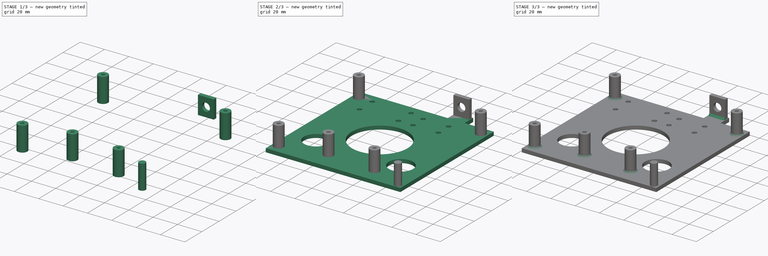
[diagram: build sequence overview — one tinted view per stage of 3, left to right]
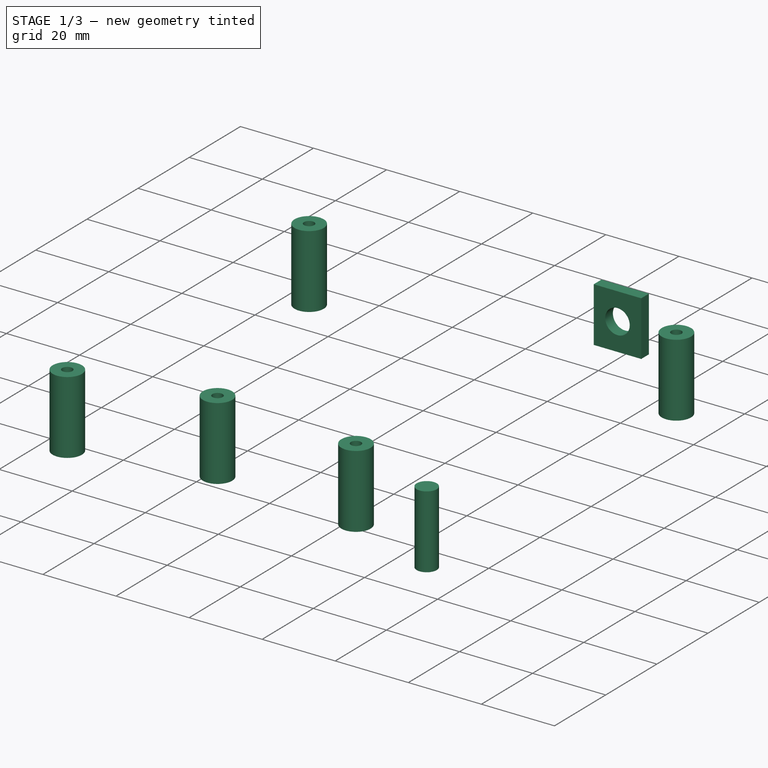
[diagram: stage 1 of 3 — iso view after this stage's code; geometry added in this stage tinted green]
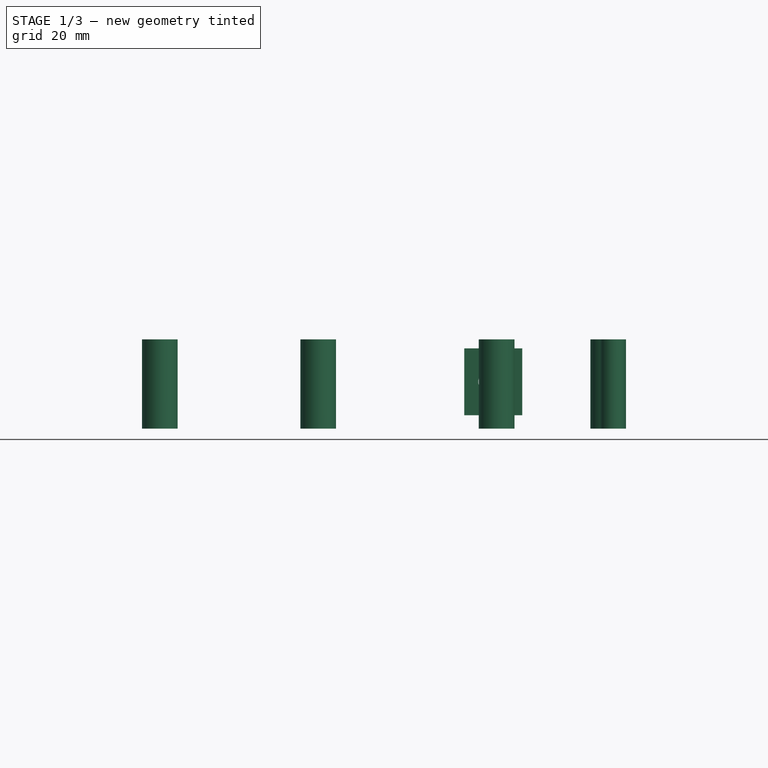
[diagram: stage 1 of 3 — front view after this stage's code; geometry added in this stage tinted green]
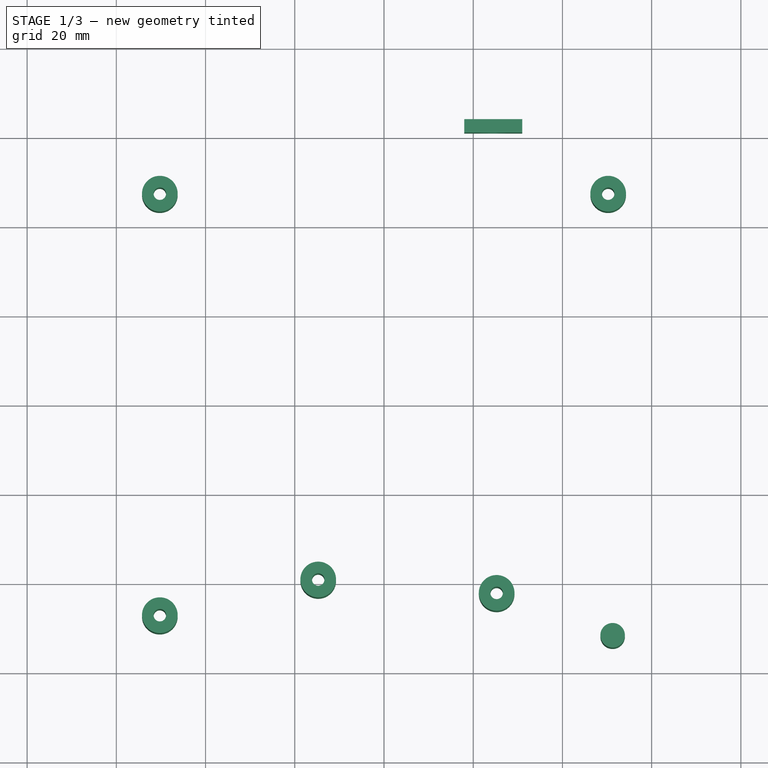
[diagram: stage 1 of 3 — top view after this stage's code; geometry added in this stage tinted green]
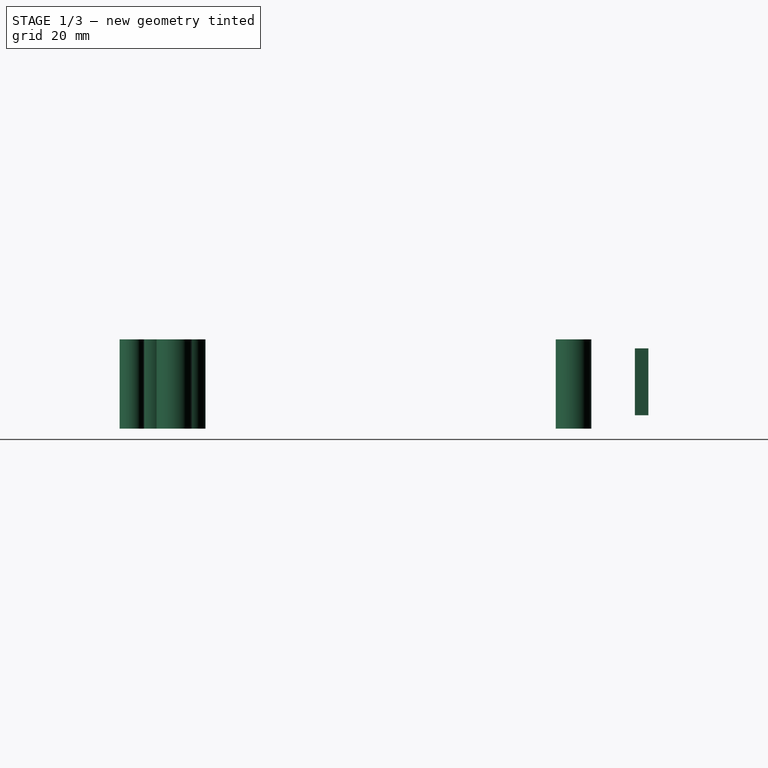
[diagram: stage 1 of 3 — right view after this stage's code; geometry added in this stage tinted green]
FCSTD DOCUMENT  (FreeCAD 0.16R6698 (Git))
Label: colibri-v2-frame
License: All rights reserved
LicenseURL: http://en.wikipedia.org/wiki/All_rights_reserved
objects: Sketcher::SketchObject×3, Part::Extrusion×3, Part::MultiFuse×1, Part::Chamfer×1
note: 8 computed .brp shape members not serialized (recipe doc carries the construction recipe); baked Part::Feature solids carry a one-line shape summary decoded from their .brp

FEATURE [Sketcher::SketchObject] Sketch001
  sketch-geometry (16):
    g0: LineSegment [constr] StartX=-50.25 StartY=47.25 StartZ=0 EndX=50.25 EndY=47.25 EndZ=0
    g1: LineSegment [constr] StartX=50.25 StartY=47.25 StartZ=0 EndX=50.25 EndY=-47.25 EndZ=0
    g2: LineSegment [constr] StartX=50.25 StartY=-47.25 StartZ=0 EndX=-50.25 EndY=-47.25 EndZ=0
    g3: LineSegment [constr] StartX=-50.25 StartY=-47.25 StartZ=0 EndX=-50.25 EndY=47.25 EndZ=0
    g4: GeomPoint [constr] X=50.25 Y=-47.25 Z=0
    g5: Circle CenterX=-50.25 CenterY=-47.25 CenterZ=0 NormalX=0 NormalY=0 NormalZ=1 Radius=1.4
    g6: Circle CenterX=50.25 CenterY=47.25 CenterZ=0 NormalX=0 NormalY=0 NormalZ=1 Radius=1.4
    g7: Circle CenterX=-50.25 CenterY=-47.25 CenterZ=0 NormalX=0 NormalY=0 NormalZ=1 Radius=4
    g8: Circle CenterX=50.25 CenterY=47.25 CenterZ=0 NormalX=0 NormalY=0 NormalZ=1 Radius=4
    g9: Circle CenterX=-50.25 CenterY=47.25 CenterZ=0 NormalX=0 NormalY=0 NormalZ=1 Radius=4
    g10: Circle CenterX=-50.25 CenterY=47.25 CenterZ=0 NormalX=0 NormalY=0 NormalZ=1 Radius=1.4
    g11: Circle CenterX=25.25 CenterY=-42.25 CenterZ=0 NormalX=0 NormalY=0 NormalZ=1 Radius=4
    g12: Circle CenterX=25.25 CenterY=-42.25 CenterZ=0 NormalX=0 NormalY=0 NormalZ=1 Radius=1.4
    g13: Circle CenterX=51.25 CenterY=-51.75 CenterZ=0 NormalX=0 NormalY=0 NormalZ=1 Radius=2.75
    g14: Circle CenterX=-14.75 CenterY=-39.25 CenterZ=0 NormalX=0 NormalY=0 NormalZ=1 Radius=4
    g15: Circle CenterX=-14.75 CenterY=-39.25 CenterZ=0 NormalX=0 NormalY=0 NormalZ=1 Radius=1.4
  constraints (39):
    c: Coincident(g0,g1)
    c: Coincident(g1,g2)
    c: Coincident(g3,g0)
    c: Horizontal(g0)
    c: Horizontal(g2)
    c: Vertical(g1)
    c: Vertical(g3)
    c: Symmetric(g0,g0,g-2)
    c: Symmetric(g0,g2,g-1)
    c: DistanceX(g0,g0) = 100.5
    c: PointOnObject(g4,g1)
    c: DistanceY(g4,g0) = 94.5
    c: Coincident(g5,g2)
    c: Coincident(g6,g0)
    c: Coincident(g7,g2)
    c: Coincident(g8,g0)
    c: Coincident(g4,g1)
    c: Coincident(g10,g9)
    c: Radius(g9) = 4
    c: Equal(g9,g8)
    c: Radius(g10) = 1.4
    c: Equal(g10,g6)
    c: Equal(g10,g5)
    c: Coincident(g3,g2)
    c: Coincident(g9,g0)
    c: Equal(g7,g9)
    c: Coincident(g12,g11)
    c: Equal(g12,g10)
    c: Equal(g11,g9)
    c: DistanceY(g2,g11) = 5
    c: DistanceX(g2,g11) = 75.5
    c: Radius(g13) = 2.75
    c: DistanceY(g13,g1) = 4.5
    c: DistanceX(g1,g13) = 1
    c: Coincident(g15,g14)
    c: Equal(g14,g9)
    c: Equal(g15,g10)
    c: DistanceX(g2,g14) = 35.5
    c: DistanceY(g2,g14) = 8
FEATURE [Part::Extrusion] Extrude001
  Base = -> Sketch001
  Dir = (0,0,20)
  Solid = true
FEATURE [Sketcher::SketchObject] Sketch002
  Placement = pos=(0,0,0) rot=(1,0,0;1.5708rad)
  sketch-geometry (6):
    g0: LineSegment StartX=30 StartY=0 StartZ=0 EndX=43 EndY=0 EndZ=0
    g1: LineSegment StartX=43 StartY=0 StartZ=0 EndX=43 EndY=15 EndZ=0
    g2: LineSegment StartX=43 StartY=15 StartZ=0 EndX=30 EndY=15 EndZ=0
    g3: LineSegment StartX=30 StartY=15 StartZ=0 EndX=30 EndY=0 EndZ=0
    g4: Circle CenterX=36.5 CenterY=7.5 CenterZ=0 NormalX=0 NormalY=0 NormalZ=1 Radius=3.35
    g5: LineSegment [constr] StartX=30 StartY=15 StartZ=0 EndX=43 EndY=0 EndZ=0
  constraints (17):
    c: Coincident(g0,g1)
    c: Coincident(g1,g2)
    c: Coincident(g2,g3)
    c: Coincident(g3,g0)
    c: Horizontal(g0)
    c: Horizontal(g2)
    c: Vertical(g1)
    c: Vertical(g3)
    c: PointOnObject(g0,g-1)
    c: DistanceX(g2,g2) = 13
    c: DistanceY(g1,g1) = 15
    c: Radius(g4) = 3.35
    c: Coincident(g5,g2)
    c: Coincident(g5,g0)
    c: PointOnObject(g4,g5)
    c: Symmetric(g2,g0,g4)
    c: DistanceX(g-1,g0) = 30
FEATURE [Part::Extrusion] Extrude002
  Base = -> Sketch002
  Dir = (0,3,0)
  Placement = pos=(-12,61,3) rot=(0,0,1;0rad)
  Solid = true
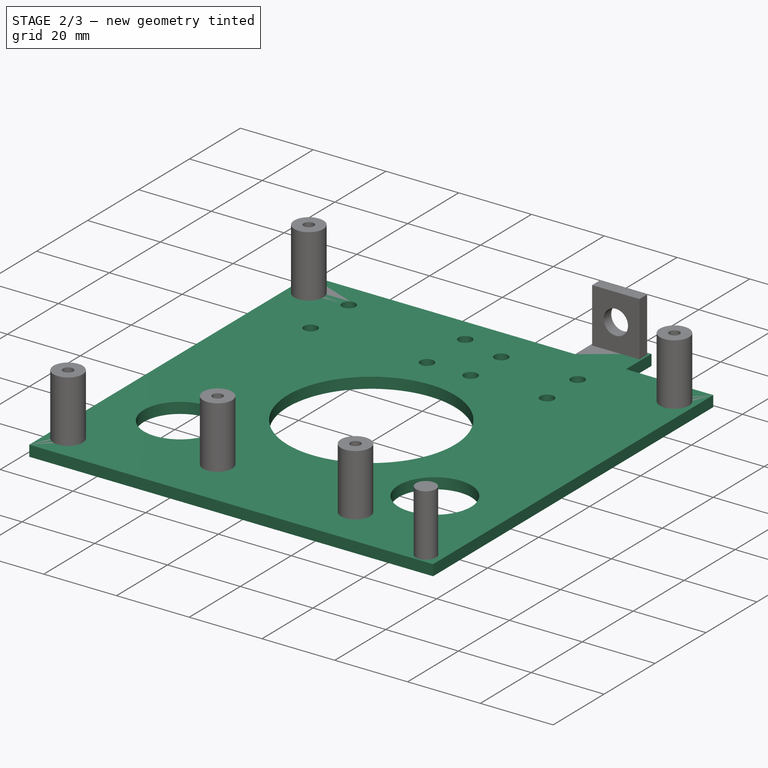
[diagram: stage 2 of 3 — iso view after this stage's code; geometry added in this stage tinted green]
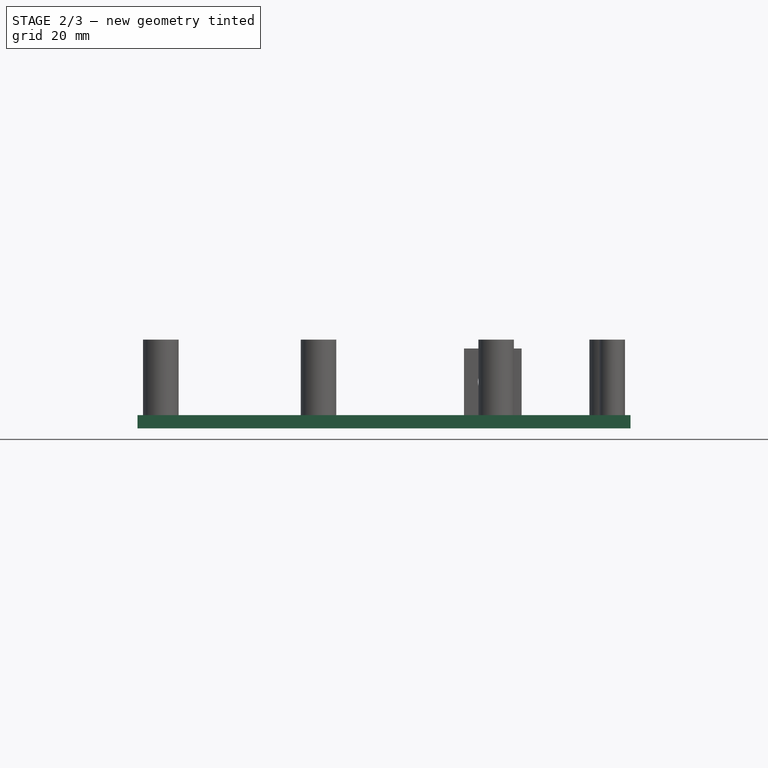
[diagram: stage 2 of 3 — front view after this stage's code; geometry added in this stage tinted green]
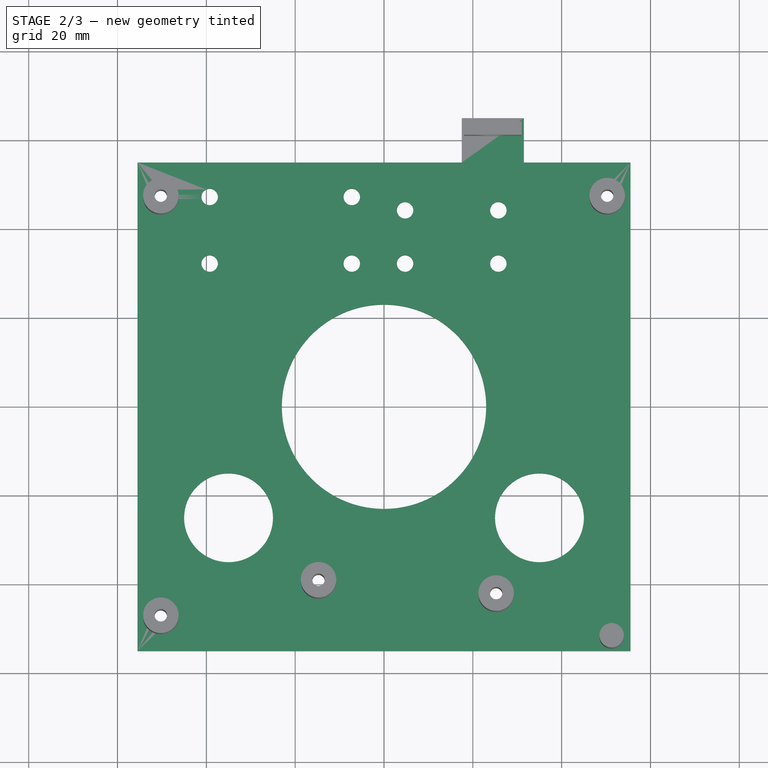
[diagram: stage 2 of 3 — top view after this stage's code; geometry added in this stage tinted green]
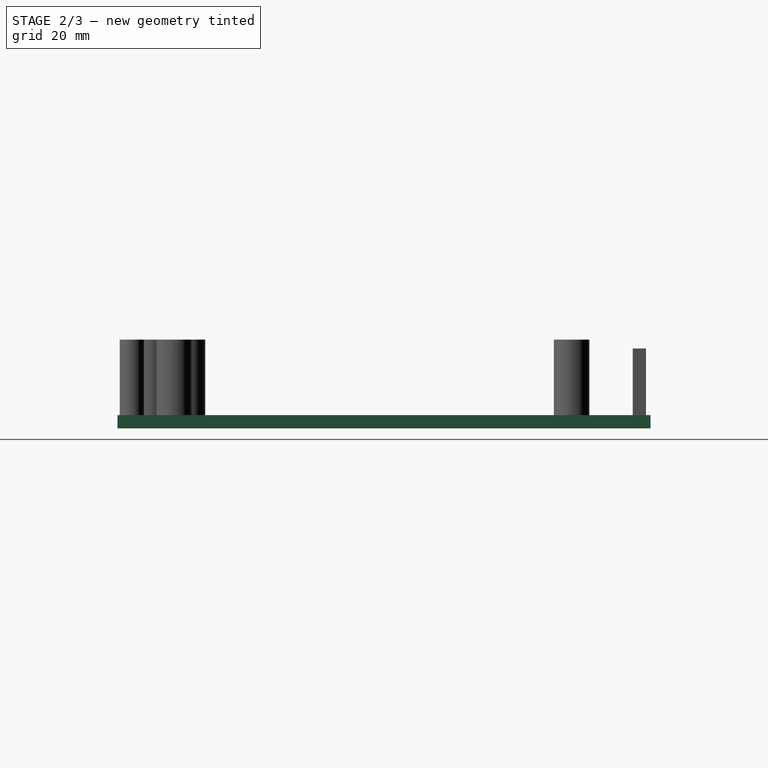
[diagram: stage 2 of 3 — right view after this stage's code; geometry added in this stage tinted green]
FEATURE [Sketcher::SketchObject] Sketch
  sketch-geometry (40):
    g0: LineSegment StartX=55.5 StartY=55 StartZ=0 EndX=55.5 EndY=-55 EndZ=0
    g1: LineSegment StartX=55.5 StartY=-55 StartZ=0 EndX=-55.5 EndY=-55 EndZ=0
    g2: LineSegment StartX=-55.5 StartY=-55 StartZ=0 EndX=-55.5 EndY=55 EndZ=0
    g3: LineSegment [constr] StartX=50.25 StartY=47.25 StartZ=0 EndX=50.25 EndY=-47.25 EndZ=0
    g4: LineSegment [constr] StartX=50.25 StartY=-47.25 StartZ=0 EndX=-50.25 EndY=-47.25 EndZ=0
    g5: LineSegment [constr] StartX=-50.25 StartY=-47.25 StartZ=0 EndX=-50.25 EndY=47.25 EndZ=0
    g6: Circle CenterX=-50.25 CenterY=-47.25 CenterZ=0 NormalX=0 NormalY=0 NormalZ=1 Radius=1.9
    g7: LineSegment [constr] StartX=-35 StartY=25 StartZ=0 EndX=35 EndY=25 EndZ=0
    g8: LineSegment [constr] StartX=35 StartY=25 StartZ=0 EndX=35 EndY=-25 EndZ=0
    g9: LineSegment [constr] StartX=35 StartY=-25 StartZ=0 EndX=-35 EndY=-25 EndZ=0
    g10: LineSegment [constr] StartX=-35 StartY=-25 StartZ=0 EndX=-35 EndY=25 EndZ=0
    g11: Circle CenterX=35 CenterY=-25 CenterZ=0 NormalX=0 NormalY=0 NormalZ=1 Radius=10
    g12: Circle CenterX=-35 CenterY=-25 CenterZ=0 NormalX=0 NormalY=0 NormalZ=1 Radius=10
    g13: Circle CenterX=0 CenterY=0 CenterZ=0 NormalX=0 NormalY=0 NormalZ=1 Radius=23
    g14: LineSegment [constr] StartX=-39.25 StartY=47.25 StartZ=0 EndX=-7.25 EndY=47.25 EndZ=0
    g15: LineSegment [constr] StartX=-7.25 StartY=47.25 StartZ=0 EndX=-7.25 EndY=32.25 EndZ=0
    g16: LineSegment [constr] StartX=-7.25 StartY=32.25 StartZ=0 EndX=-39.25 EndY=32.25 EndZ=0
    g17: LineSegment [constr] StartX=-39.25 StartY=32.25 StartZ=0 EndX=-39.25 EndY=47.25 EndZ=0
    g18: LineSegment [constr] StartX=4.75 StartY=44.25 StartZ=0 EndX=25.75 EndY=44.25 EndZ=0
    g19: LineSegment [constr] StartX=25.75 StartY=44.25 StartZ=0 EndX=25.75 EndY=32.25 EndZ=0
    g20: LineSegment [constr] StartX=25.75 StartY=32.25 StartZ=0 EndX=4.75 EndY=32.25 EndZ=0
    g21: LineSegment [constr] StartX=4.75 StartY=32.25 StartZ=0 EndX=4.75 EndY=44.25 EndZ=0
    g22: Circle CenterX=-39.25 CenterY=47.25 CenterZ=0 NormalX=0 NormalY=0 NormalZ=1 Radius=1.85
    g23: Circle CenterX=-7.25 CenterY=47.25 CenterZ=0 NormalX=0 NormalY=0 NormalZ=1 Radius=1.85
    g24: Circle CenterX=-39.25 CenterY=32.25 CenterZ=0 NormalX=0 NormalY=0 NormalZ=1 Radius=1.85
    g25: Circle CenterX=-7.25 CenterY=32.25 CenterZ=0 NormalX=0 NormalY=0 NormalZ=1 Radius=1.85
    g26: Circle CenterX=4.75 CenterY=44.25 CenterZ=0 NormalX=0 NormalY=0 NormalZ=1 Radius=1.85
    g27: Circle CenterX=25.75 CenterY=44.25 CenterZ=0 NormalX=0 NormalY=0 NormalZ=1 Radius=1.85
    g28: Circle CenterX=4.75 CenterY=32.25 CenterZ=0 NormalX=0 NormalY=0 NormalZ=1 Radius=1.85
    g29: Circle CenterX=25.75 CenterY=32.25 CenterZ=0 NormalX=0 NormalY=0 NormalZ=1 Radius=1.85
    g30: LineSegment [constr] StartX=-50.25 StartY=47.25 StartZ=0 EndX=50.25 EndY=47.25 EndZ=0
    g31: Circle CenterX=50.25 CenterY=47.25 CenterZ=0 NormalX=0 NormalY=0 NormalZ=1 Radius=1.9
    g32: Circle CenterX=-50.25 CenterY=47.25 CenterZ=0 NormalX=0 NormalY=0 NormalZ=1 Radius=1.9
    g33: Circle CenterX=25.25 CenterY=-42.25 CenterZ=0 NormalX=0 NormalY=0 NormalZ=1 Radius=1.9
    g34: LineSegment StartX=-55.5 StartY=55 StartZ=0 EndX=17.5 EndY=55 EndZ=0
    g35: LineSegment StartX=17.5 StartY=55 StartZ=0 EndX=17.5 EndY=65 EndZ=0
    g36: LineSegment StartX=17.5 StartY=65 StartZ=0 EndX=31.5 EndY=65 EndZ=0
    g37: LineSegment StartX=31.5 StartY=65 StartZ=0 EndX=31.5 EndY=55 EndZ=0
    g38: LineSegment StartX=31.5 StartY=55 StartZ=0 EndX=55.5 EndY=55 EndZ=0
    g39: Circle CenterX=-14.75 CenterY=-39.25 CenterZ=0 NormalX=0 NormalY=0 NormalZ=1 Radius=1.9
  constraints (106):
    c: Coincident(g0,g1)
    c: Coincident(g1,g2)
    c: Horizontal(g1)
    c: Vertical(g0)
    c: Vertical(g2)
    c: Symmetric(g2,g1,g-1)
    c: Symmetric(g1,g0,g-2)
    c: DistanceY(g2,g2) = 110
    c: DistanceX(g2,g0) = 111
    c: Coincident(g3,g4)
    c: Coincident(g4,g5)
    c: Vertical(g3)
    c: Vertical(g5)
    c: Symmetric(g5,g4,g-1)
    c: Coincident(g6,g4)
    c: Coincident(g7,g8)
    c: Coincident(g8,g9)
    c: Coincident(g9,g10)
    c: Coincident(g10,g7)
    c: Horizontal(g7)
    c: Horizontal(g9)
    c: Vertical(g8)
    c: Vertical(g10)
    c: Symmetric(g7,g9,g-1)
    c: Symmetric(g7,g7,g-2)
    c: DistanceY(g10,g10) = 50
    c: DistanceX(g7,g7) = 70
    c: Coincident(g11,g8)
    c: Coincident(g12,g9)
    c: Coincident(g13,g-1)
    c: Radius(g12) = 10
    c: Equal(g12,g11)
    c: Radius(g13) = 23
    c: Coincident(g14,g15)
    c: Coincident(g15,g16)
    c: Coincident(g16,g17)
    c: Coincident(g17,g14)
    c: Horizontal(g14)
    c: Horizontal(g16)
    c: Vertical(g15)
    c: Vertical(g17)
    c: Coincident(g18,g19)
    c: Coincident(g19,g20)
    c: Coincident(g20,g21)
    c: Coincident(g21,g18)
    c: Horizontal(g18)
    c: Horizontal(g20)
    c: Vertical(g19)
    c: Vertical(g21)
    c: DistanceY(g15,g15) = 15
    c: DistanceY(g21,g21) = 12
    c: DistanceX(g15,g20) = 12
    c: DistanceX(g16,g16) = 32
    c: DistanceX(g18,g18) = 21
    c: Coincident(g22,g14)
    c: Coincident(g23,g14)
    c: Coincident(g24,g16)
    c: Coincident(g25,g15)
    c: Equal(g22,g23)
    c: Equal(g22,g25)
    c: Equal(g22,g24)
    c: Coincident(g26,g18)
    c: Coincident(g27,g18)
    c: Coincident(g28,g20)
    c: Coincident(g29,g19)
    c: Radius(g28) = 1.85
    c: Equal(g28,g26)
    c: Equal(g28,g27)
    c: Equal(g28,g29)
    c: Coincident(g30,g3)
    c: Horizontal(g30)
    c: Symmetric(g4,g3,g-2)
    c: DistanceY(g3,g3) = 94.5
    c: Symmetric(g3,g3,g-1)
    c: Coincident(g30,g5)
    c: DistanceX(g4,g3) = 100.5
    c: Coincident(g31,g3)
    c: Radius(g32) = 1.9
    c: Equal(g32,g31)
    c: Equal(g32,g6)
    c: Coincident(g32,g5)
    c: DistanceY(g4,g33) = 5
    c: DistanceX(g4,g33) = 75.5
    c: Equal(g33,g32)
    c: DistanceX(g5,g14) = 11
    c: PointOnObject(g14,g30)
    c: Equal(g22,g28)
    c: Coincident(g34,g2)
    c: Horizontal(g34)
    c: Coincident(g34,g35)
    c: Coincident(g35,g36)
    c: Horizontal(g36)
    c: Coincident(g36,g37)
    c: Coincident(g37,g38)
    c: Coincident(g38,g0)
    c: Horizontal(g38)
    c: DistanceX(g34,g34) = 73
    c: DistanceX(g38,g38) = 24
    c: Vertical(g37)
    c: Vertical(g35)
    c: PointOnObject(g37,g34)
    c: DistanceY(g37,g37) = 10
    c: Equal(g39,g32)
    c: DistanceX(g4,g39) = 35.5
    c: DistanceY(g4,g39) = 8
    c: PointOnObject(g20,g16)
FEATURE [Part::Extrusion] Extrude
  Base = -> Sketch
  Dir = (0,0,3)
  Solid = true
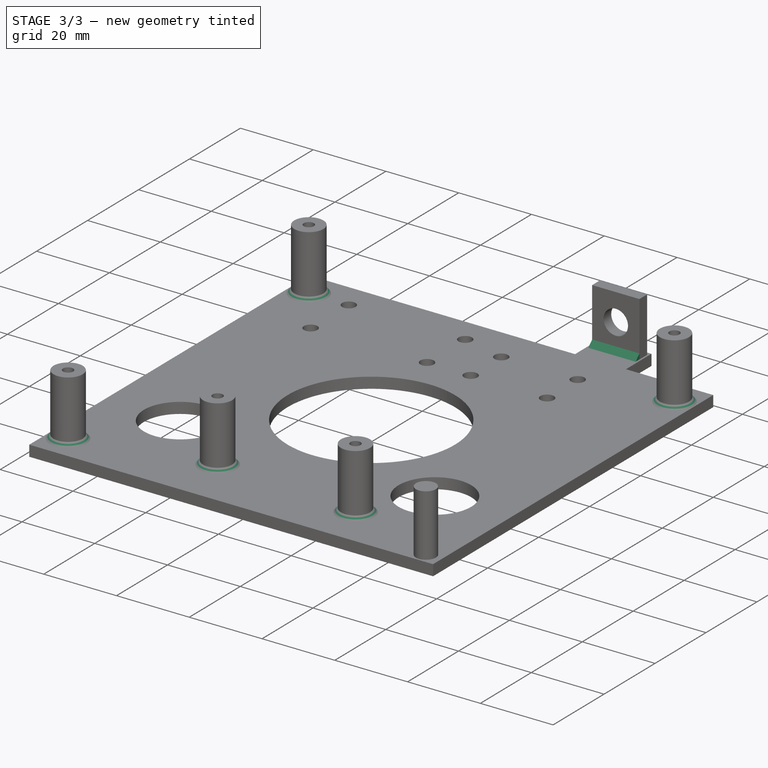
[diagram: stage 3 of 3 — iso view after this stage's code; geometry added in this stage tinted green]
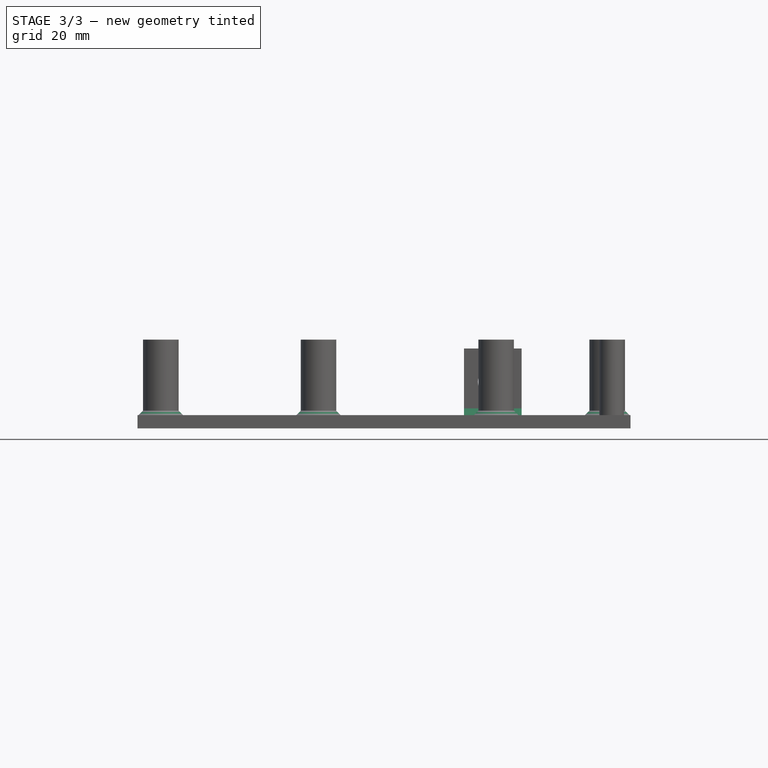
[diagram: stage 3 of 3 — front view after this stage's code; geometry added in this stage tinted green]
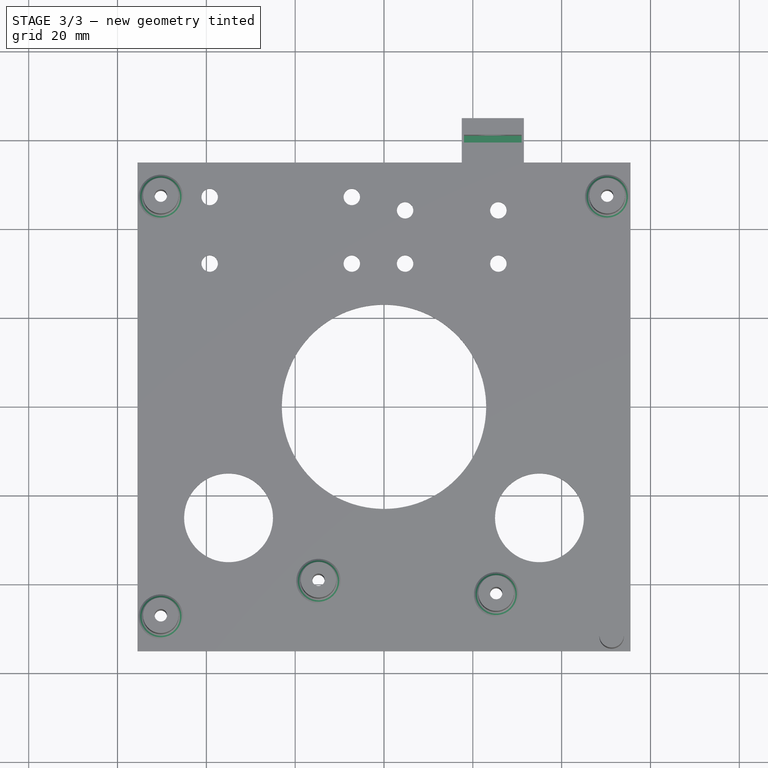
[diagram: stage 3 of 3 — top view after this stage's code; geometry added in this stage tinted green]
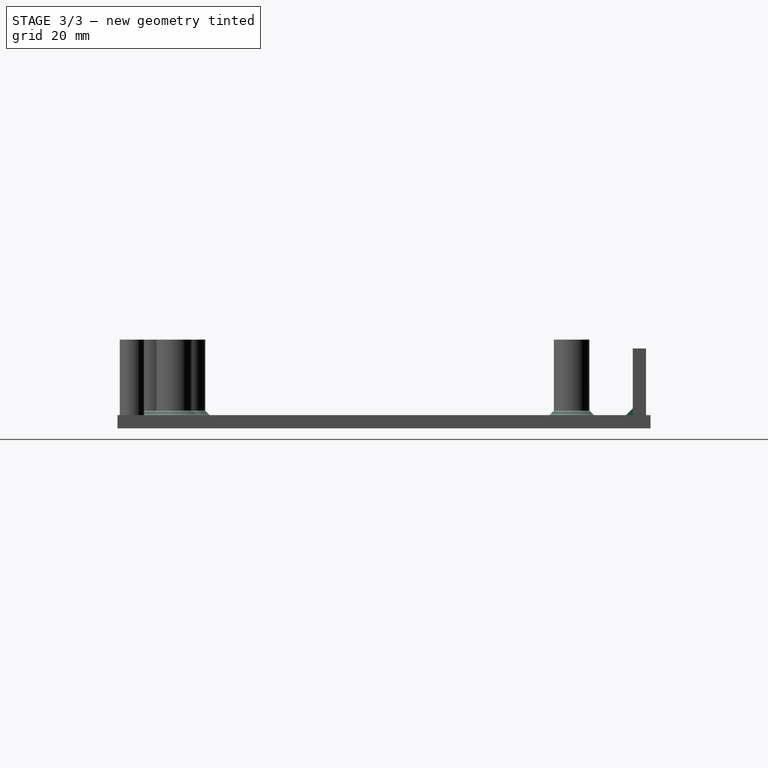
[diagram: stage 3 of 3 — right view after this stage's code; geometry added in this stage tinted green]
FEATURE [Part::MultiFuse] Fusion
  Shapes = -> [Extrude,Extrude001,Extrude002]
FEATURE [Part::Chamfer] Chamfer
  Base = -> Fusion
  Edges = 6 edges: [Edge11 r=1.5,Edge26 r=1,Edge32 r=1,Edge33 r=1,Edge37 r=1,Edge39 r=1]
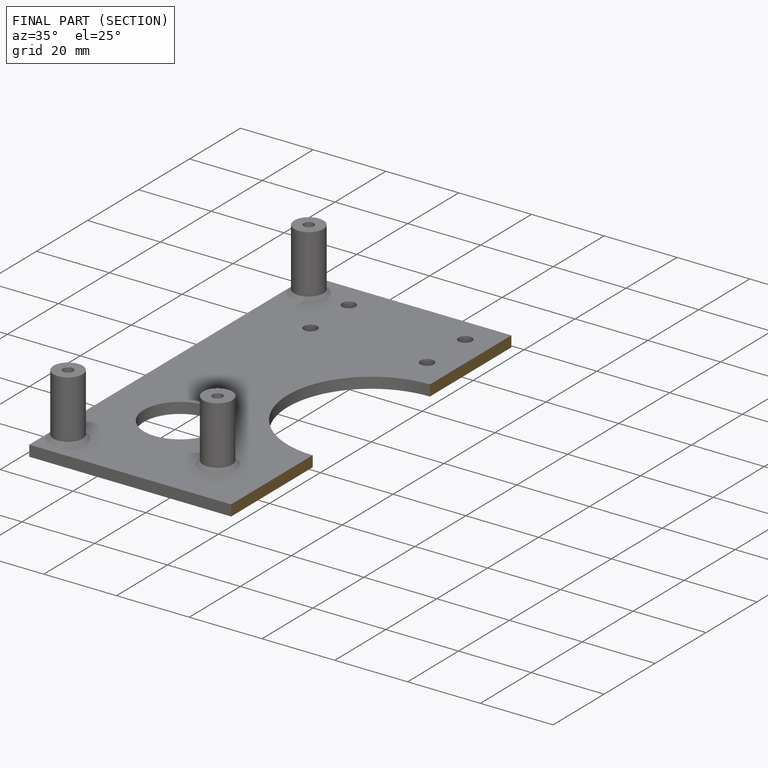
[diagram: finished part — half-section view (interior)]
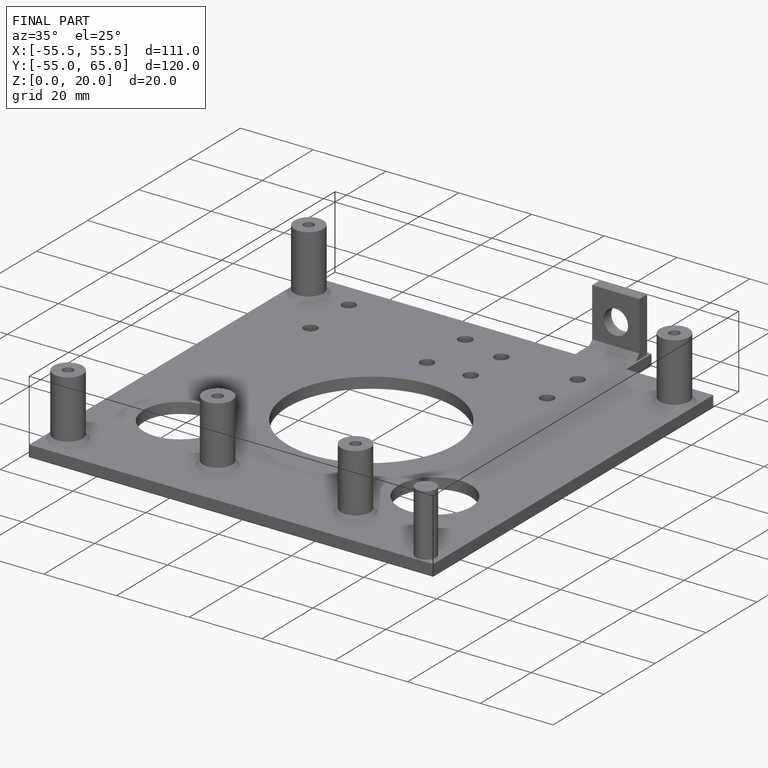
[diagram: finished part — iso view with bounding-box wireframe]
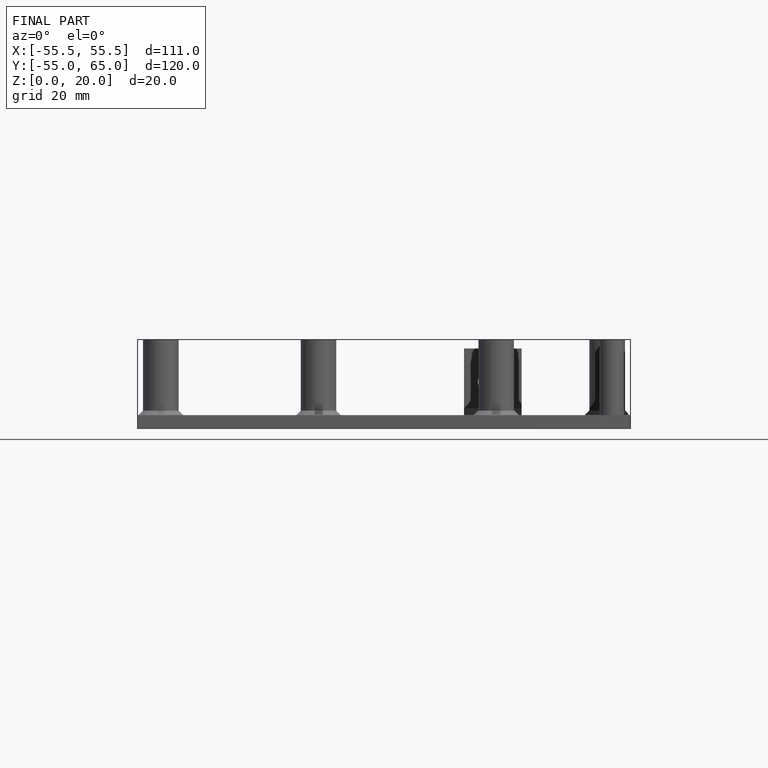
[diagram: finished part — front view with bounding-box wireframe]
